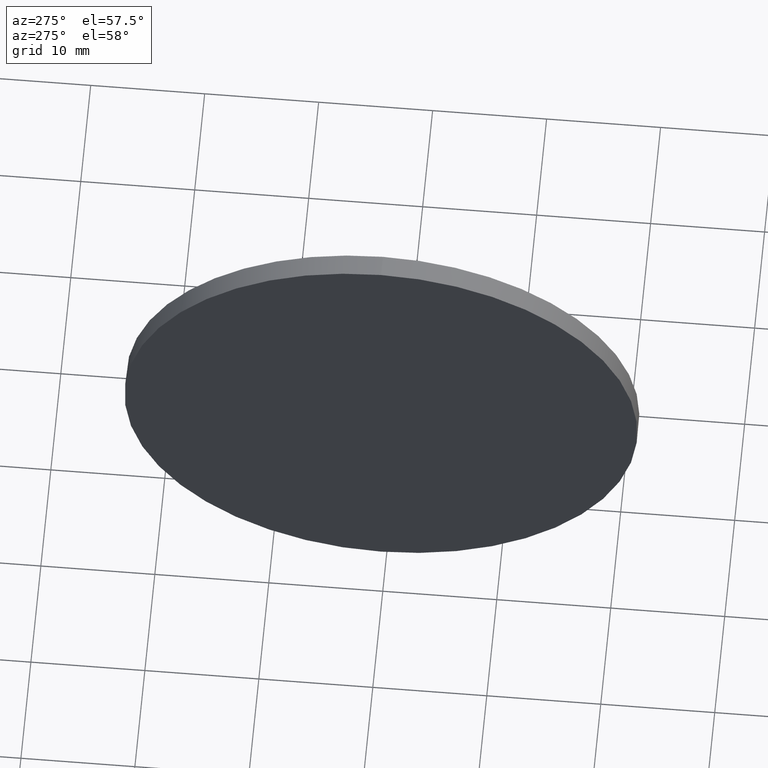
[diagram: clean part render]
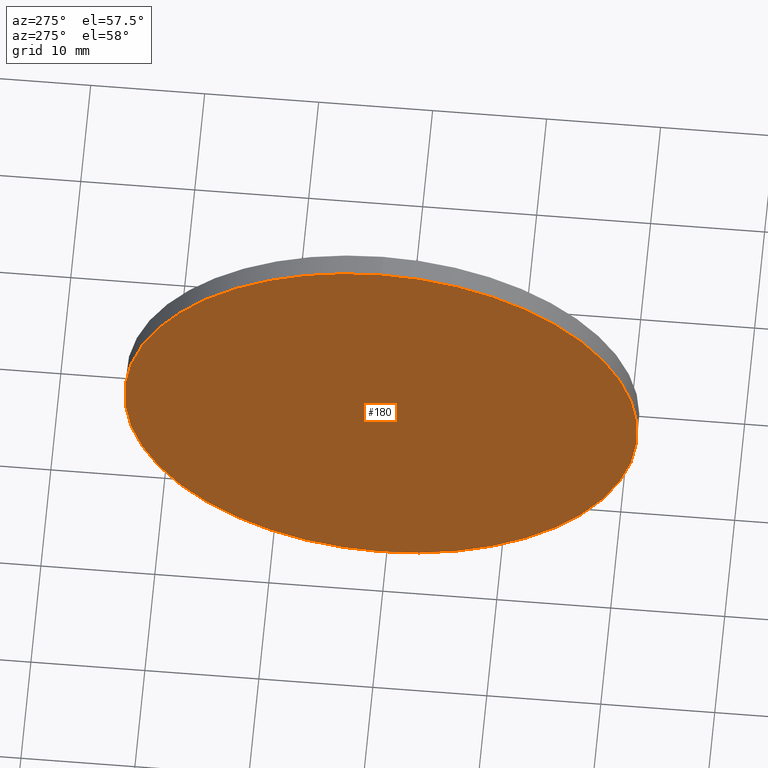
[diagram: same view with one face highlighted and labeled with its STEP entity id]
A machine part, auxiliary view. The second image highlights one B-rep face of the part: STEP entity #180.
In plain terms, the highlighted planar face has unit normal (1, 0, 0).
Its self-contained STEP definition (entity closure, byte-faithful):
#6 = CARTESIAN_POINT ( 'NONE',  ( 443.4635203188954600, 60.46347484045998000, 22.50000000000000700 ) ) ;
#9 = CARTESIAN_POINT ( 'NONE',  ( 443.4635203188954600, 60.46347484045998000, 0.0000000000000000000 ) ) ;
#13 = VERTEX_POINT ( 'NONE', #6 ) ;
#23 = DIRECTION ( 'NONE',  ( 0.0000000000000000000, 0.0000000000000000000, -1.000000000000000000 ) ) ;
#30 = DIRECTION ( 'NONE',  ( 0.0000000000000000000, 0.0000000000000000000, 1.000000000000000000 ) ) ;
#49 = ORIENTED_EDGE ( 'NONE', *, *, #125, .T. ) ;
#56 = CIRCLE ( 'NONE', #177, 22.50000000000000700 ) ;
#58 = ORIENTED_EDGE ( 'NONE', *, *, #181, .T. ) ;
#64 = CARTESIAN_POINT ( 'NONE',  ( 443.4635203188954600, 60.46347484045998000, 0.0000000000000000000 ) ) ;
#84 = AXIS2_PLACEMENT_3D ( 'NONE', #64, #100, #30 ) ;
#97 = CIRCLE ( 'NONE', #84, 22.50000000000000700 ) ;
#98 = FACE_OUTER_BOUND ( 'NONE', #146, .T. ) ;
#100 = DIRECTION ( 'NONE',  ( -1.000000000000000000, -0.0000000000000000000, -0.0000000000000000000 ) ) ;
#101 = AXIS2_PLACEMENT_3D ( 'NONE', #9, #116, #23 ) ;
#116 = DIRECTION ( 'NONE',  ( 1.000000000000000000, 0.0000000000000000000, 0.0000000000000000000 ) ) ;
#120 = VERTEX_POINT ( 'NONE', #162 ) ;
#125 = EDGE_CURVE ( 'NONE', #120, #13, #97, .T. ) ;
#130 = DIRECTION ( 'NONE',  ( 0.0000000000000000000, 0.0000000000000000000, 1.000000000000000000 ) ) ;
#146 = EDGE_LOOP ( 'NONE', ( #58, #49 ) ) ;
#149 = CARTESIAN_POINT ( 'NONE',  ( 443.4635203188954600, 60.46347484045998000, 0.0000000000000000000 ) ) ;
#162 = CARTESIAN_POINT ( 'NONE',  ( 443.4635203188954600, 60.46347484045998000, -22.50000000000000700 ) ) ;
#177 = AXIS2_PLACEMENT_3D ( 'NONE', #149, #184, #130 ) ;
#180 = ADVANCED_FACE ( 'NONE', ( #98 ), #183, .F. ) ;
#181 = EDGE_CURVE ( 'NONE', #13, #120, #56, .T. ) ;
#183 = PLANE ( 'NONE',  #101 ) ;
#184 = DIRECTION ( 'NONE',  ( -1.000000000000000000, -0.0000000000000000000, -0.0000000000000000000 ) ) ;